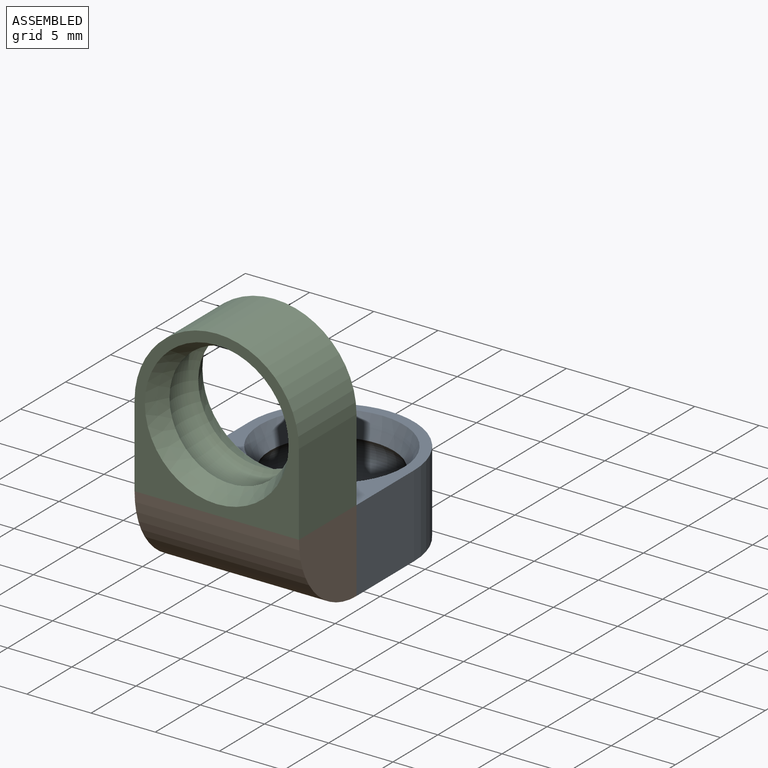
[diagram: assembled view]
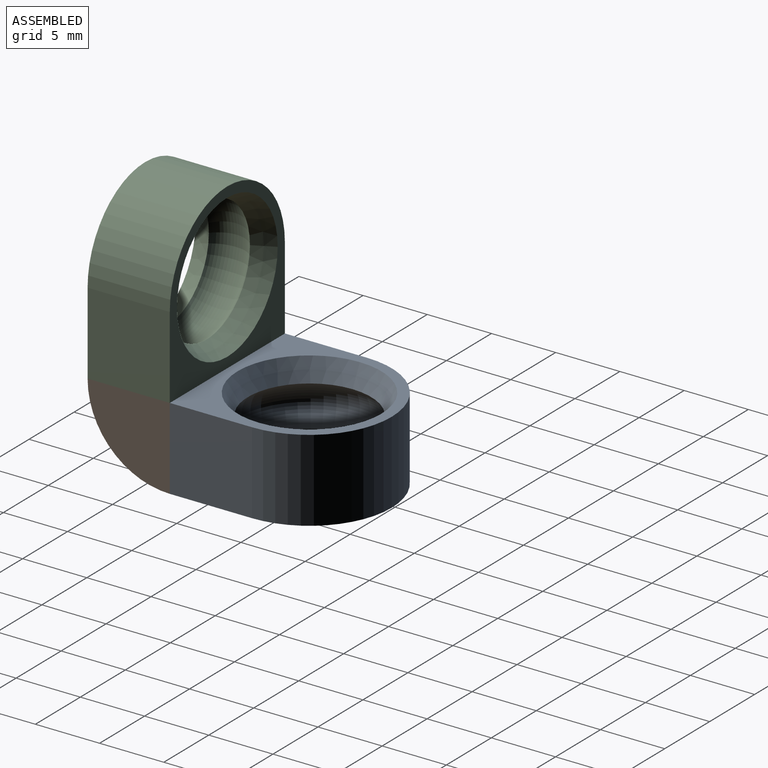
[diagram: assembled view, second angle]
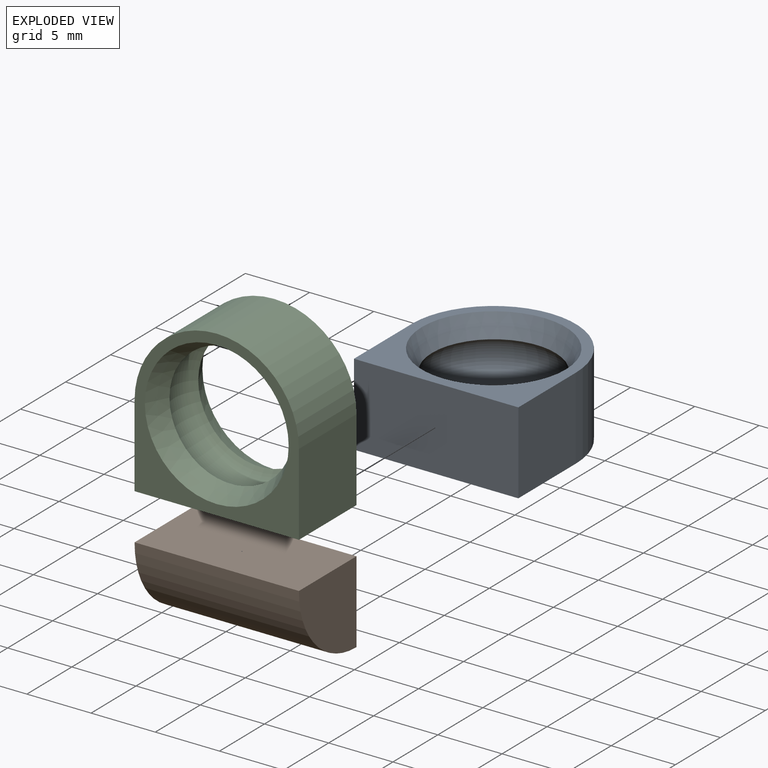
[diagram: exploded view]
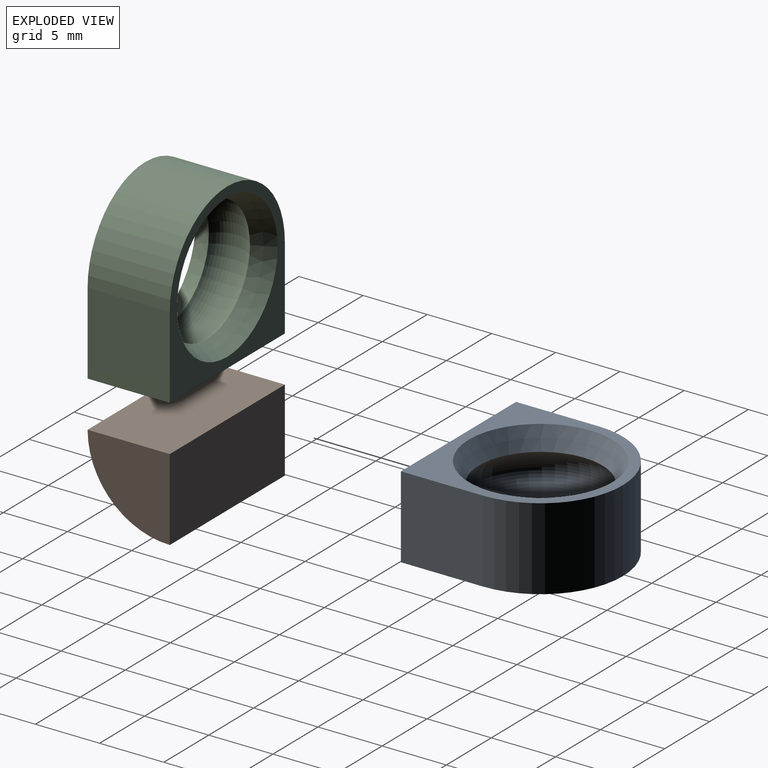
[diagram: exploded view, second angle]
ASSEMBLY  parts=3 mates=2
PART A: 9 faces, bbox 12.8x12.8x6.4 mm
  f0: cylinder r=6.4mm len=12.8mm, axis (0,0,-1), area 128.7mm2, adj f1,f5,f6,f8
  f1: plane 12.8x12.8mm, normal (0,0,-1), area 47.7mm2, adj f0,f2,f6,f7,f8
  f2: cone r=5.6mm half-angle=26.6deg, axis (0,0,-1), area 58.4mm2, adj f1,f3
  f3: torus R=3.6mm, axis (0,0,-1), area 124.1mm2, adj f2,f4
  f4: cone r=5.6mm half-angle=26.6deg, axis (0,0,1), area 58.4mm2, adj f3,f5
  f5: plane 12.8x12.8mm, normal (0,0,1), area 47.7mm2, adj f0,f4,f6,f7,f8
  f6: plane 6.4x6.4mm, normal (-1,0,0), area 41mm2, adj f0,f1,f5,f7
  f7: plane 12.8x6.4mm, normal (0,-1,0), area 81.9mm2, adj f1,f5,f6,f8
  f8: plane 6.4x6.4mm, normal (1,0,0), area 41mm2, adj f0,f1,f5,f7
PART B: 5 faces, bbox 6.4x6.4x12.8 mm
  f0: cylinder r=6.4mm len=12.8mm, axis (0,0,-1), area 128.7mm2, adj f1,f2,f3,f4
  f1: plane 12.8x6.4mm, normal (0,1,0), area 81.9mm2, adj f0,f2,f3,f4
  f2: plane 12.8x6.4mm, normal (-1,0,0), area 81.9mm2, adj f0,f1,f3,f4
  f3: plane 6.4x6.4mm, normal (0,0,1), area 32.2mm2, adj f0,f1,f2
  f4: plane 6.4x6.4mm, normal (0,0,-1), area 32.2mm2, adj f0,f1,f2
PART C: same geometry as A
PLACE A t=(2.32,-23.53,7.49)mm
PLACE B rot(axis=(0,1,0),90deg) t=(-4.08,-4.33,-8.51)mm
PLACE C rot(axis=(1,0,0),90deg) t=(2.32,2.07,-11.71)mm
MATE fastened B.f1 <-> A.f7  axis (0,1,0) through (2.32,2.07,10.69)mm
MATE fastened C.f7 <-> B.f2  axis (0,0,-1) through (2.32,-1.13,13.89)mm
